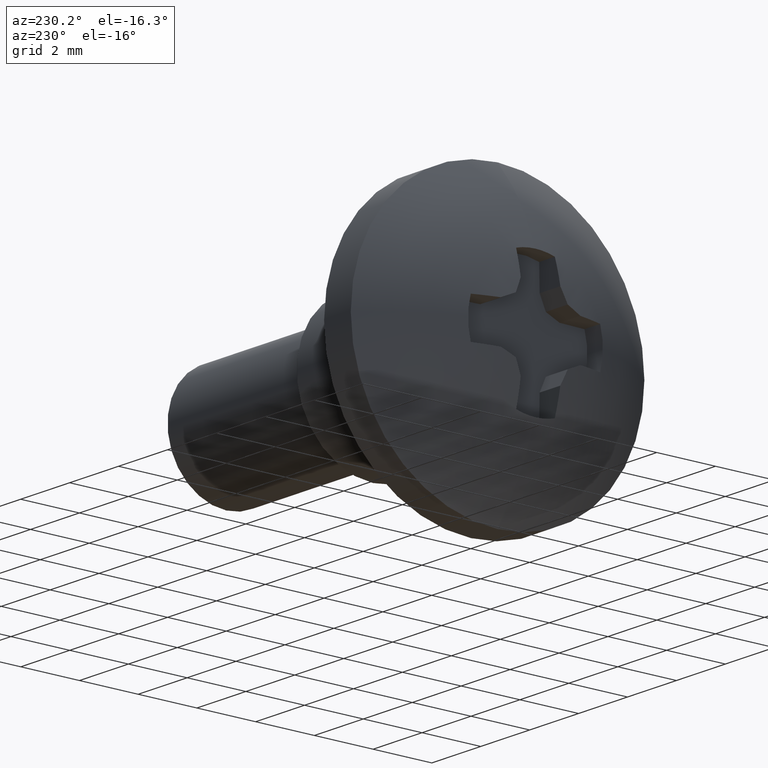
[diagram: clean part render]
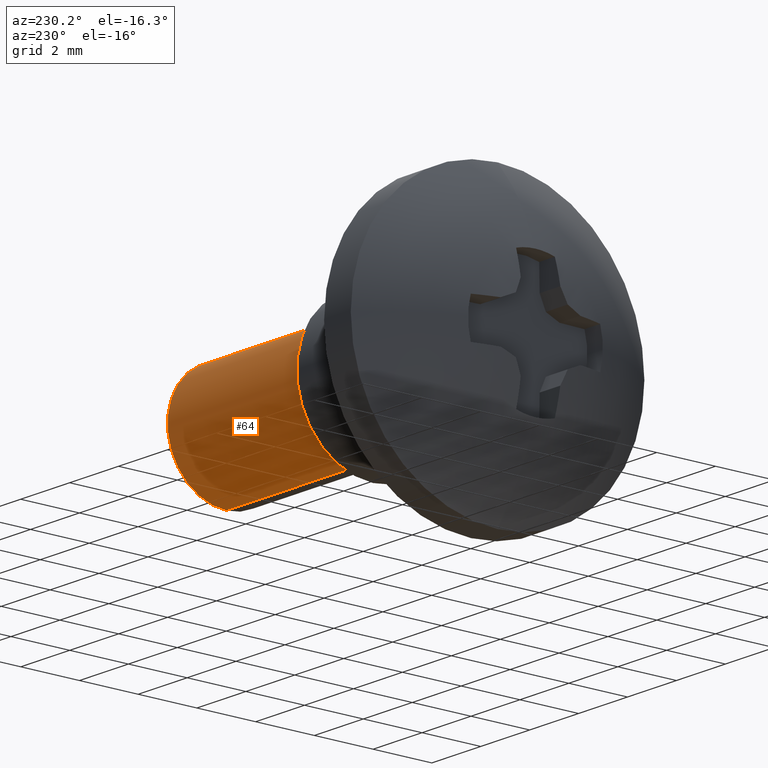
[diagram: same view with one face highlighted and labeled with its STEP entity id]
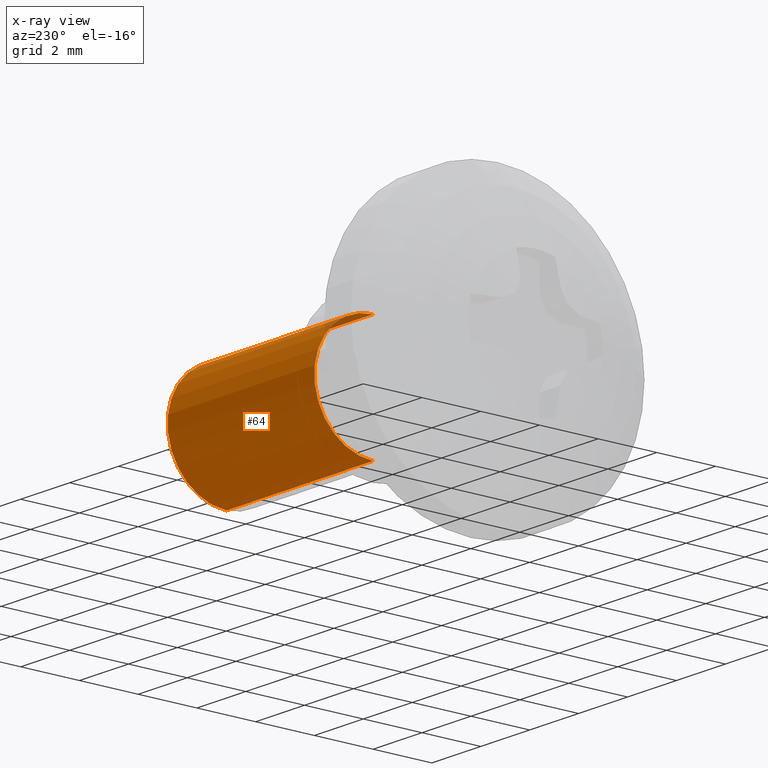
[diagram: x-ray of the same camera — body ghosted, the highlighted face saturated]
A machine part, auxiliary view. The second image highlights one B-rep face of the part: STEP entity #64.
The next image is the same camera in x-ray: the body ghosted, the highlighted face saturated — about 1% of this face is hidden behind the body in this view.
In plain terms, the highlighted cylindrical surface (partial cylindrical patch) has radius 2 mm, axis along (-1, -0, 0).
Its self-contained STEP definition (entity closure, byte-faithful):
#64=ADVANCED_FACE('',(#315),#314,.T.);
#314=CYLINDRICAL_SURFACE('',#519,2.00000000000E+00);
#315=FACE_OUTER_BOUND('',#520,.T.);
#516=CARTESIAN_POINT('',(-2.99999999208E+00,0.00000000000E+00,0.00000000000E+00));
#517=DIRECTION('',(-1.00000000000E+00,-0.00000000000E+00,0.00000000000E+00));
#518=DIRECTION('',(0.00000000000E+00,-0.00000000000E+00,1.00000000000E+00));
#519=AXIS2_PLACEMENT_3D('',#516,#517,#518);
#520=EDGE_LOOP('',(#668,#669,#670,#671));
#668=ORIENTED_EDGE('',*,*,#746,.F.);
#669=ORIENTED_EDGE('',*,*,#792,.F.);
#670=ORIENTED_EDGE('',*,*,#748,.T.);
#671=ORIENTED_EDGE('',*,*,#793,.T.);
#746=EDGE_CURVE('',#973,#972,#980,.T.);
#748=EDGE_CURVE('',#987,#986,#994,.T.);
#792=EDGE_CURVE('',#987,#973,#1286,.T.);
#793=EDGE_CURVE('',#986,#972,#1292,.T.);
#972=VERTEX_POINT('',#1456);
#973=VERTEX_POINT('',#1457);
#980=CIRCLE('',#1465,2.00000000000E+00);
#986=VERTEX_POINT('',#1466);
#987=VERTEX_POINT('',#1467);
#994=CIRCLE('',#1475,2.00000000000E+00);
#1286=(BOUNDED_CURVE() B_SPLINE_CURVE(1,(#1652,#1653),.UNSPECIFIED.,.F.,.F.) B_SPLINE_CURVE_WITH_KNOTS((2,2),(8.33333347523E-02,9.16666668865E-01),.UNSPECIFIED.) CURVE() GEOMETRIC_REPRESENTATION_ITEM() RATIONAL_B_SPLINE_CURVE((1.00000000000E+00,1.00000000000E+00)) REPRESENTATION_ITEM('') );
#1292=(BOUNDED_CURVE() B_SPLINE_CURVE(1,(#1654,#1655),.UNSPECIFIED.,.F.,.F.) B_SPLINE_CURVE_WITH_KNOTS((2,2),(8.33333333333E-02,9.16666666667E-01),.UNSPECIFIED.) CURVE() GEOMETRIC_REPRESENTATION_ITEM() RATIONAL_B_SPLINE_CURVE((7.50000000000E-01,7.50000000000E-01)) REPRESENTATION_ITEM('') );
#1456=CARTESIAN_POINT('',(-6.00000000000E+00,2.44921270764E-16,-2.00000000000E+00));
#1457=CARTESIAN_POINT('',(-6.00000000000E+00,7.40148683083E-17,2.00000000000E+00));
#1462=CARTESIAN_POINT('',(-6.00000000000E+00,0.00000000000E+00,0.00000000000E+00));
#1463=DIRECTION('',(-1.00000000000E+00,0.00000000000E+00,0.00000000000E+00));
#1464=DIRECTION('',(-0.00000000000E+00,-0.00000000000E+00,-1.00000000000E+00));
#1465=AXIS2_PLACEMENT_3D('',#1462,#1463,#1464);
#1466=CARTESIAN_POINT('',(0.00000000000E+00,7.40148683083E-17,-2.00000000000E+00));
#1467=CARTESIAN_POINT('',(0.00000000000E+00,-4.66965875689E-16,2.00000000000E+00));
#1472=CARTESIAN_POINT('',(0.00000000000E+00,0.00000000000E+00,0.00000000000E+00));
#1473=DIRECTION('',(-1.00000000000E+00,0.00000000000E+00,0.00000000000E+00));
#1474=DIRECTION('',(-0.00000000000E+00,-1.11022302463E-16,1.00000000000E+00));
#1475=AXIS2_PLACEMENT_3D('',#1472,#1473,#1474);
#1652=CARTESIAN_POINT('',(-1.02167390104E-08,0.00000000000E+00,2.00000000000E+00));
#1653=CARTESIAN_POINT('',(-6.00000001583E+00,0.00000000000E+00,2.00000000000E+00));
#1654=CARTESIAN_POINT('',(7.40148683083E-17,-7.40148683083E-17,-2.00000000000E+00));
#1655=CARTESIAN_POINT('',(-6.00000000000E+00,-7.40148683083E-17,-2.00000000000E+00));